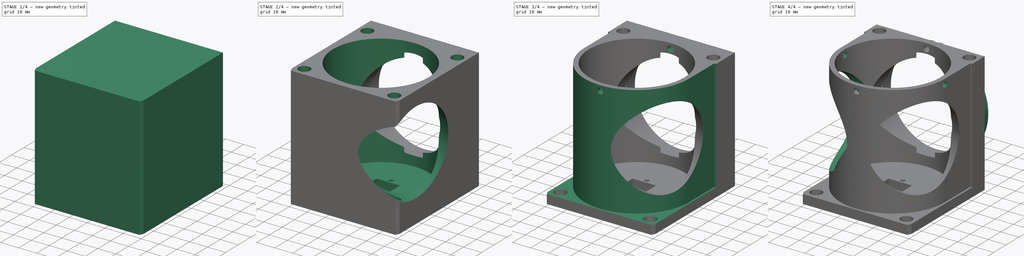
[diagram: build sequence overview — one tinted view per stage of 4, left to right]
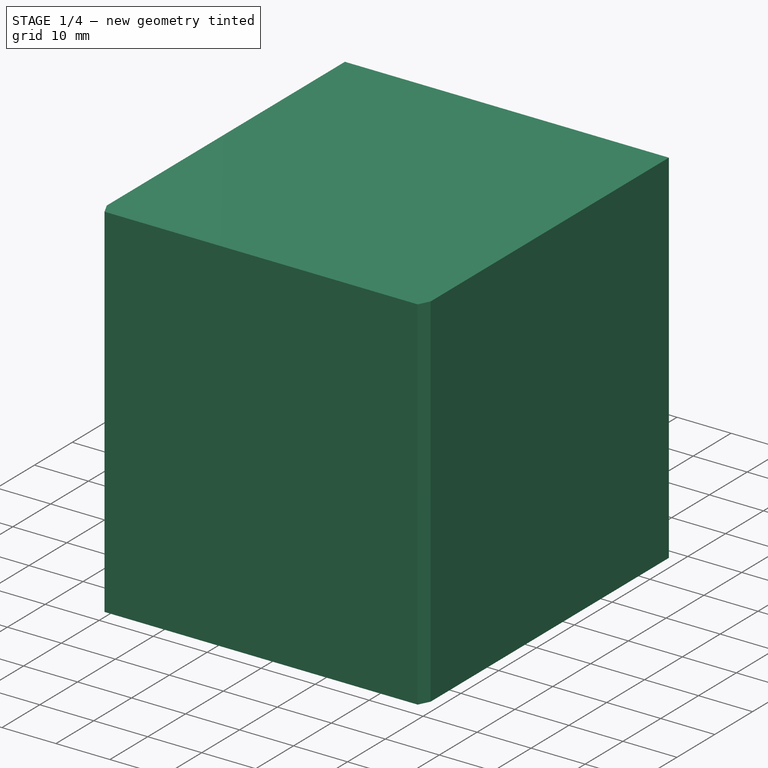
[diagram: stage 1 of 4 — iso view after this stage's code; geometry added in this stage tinted green]
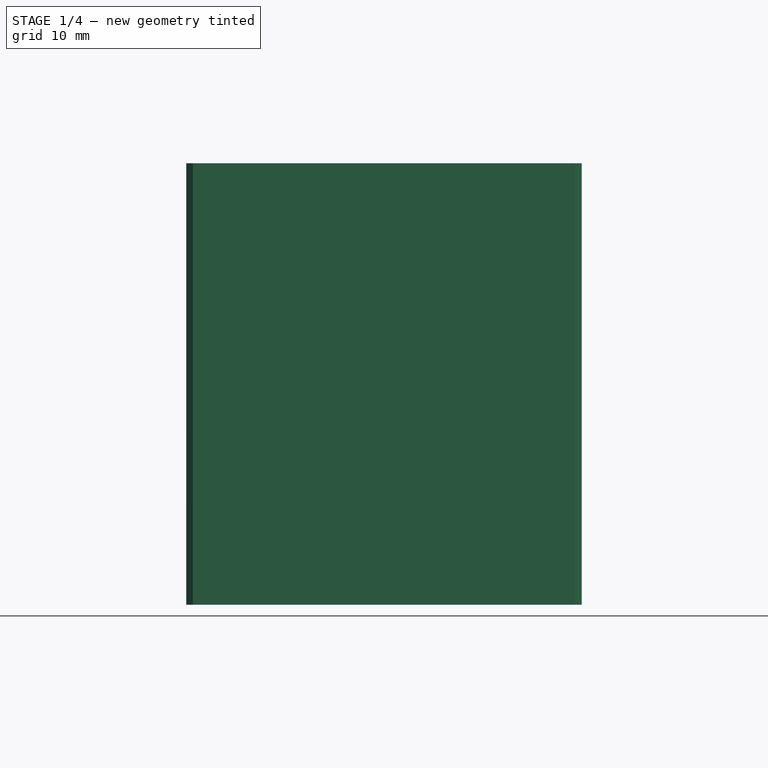
[diagram: stage 1 of 4 — front view after this stage's code; geometry added in this stage tinted green]
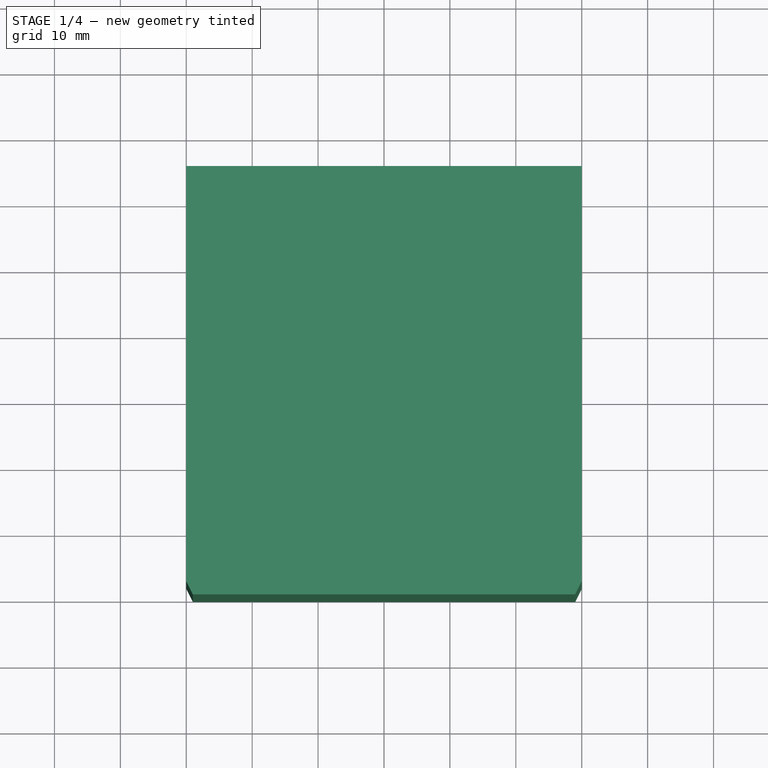
[diagram: stage 1 of 4 — top view after this stage's code; geometry added in this stage tinted green]
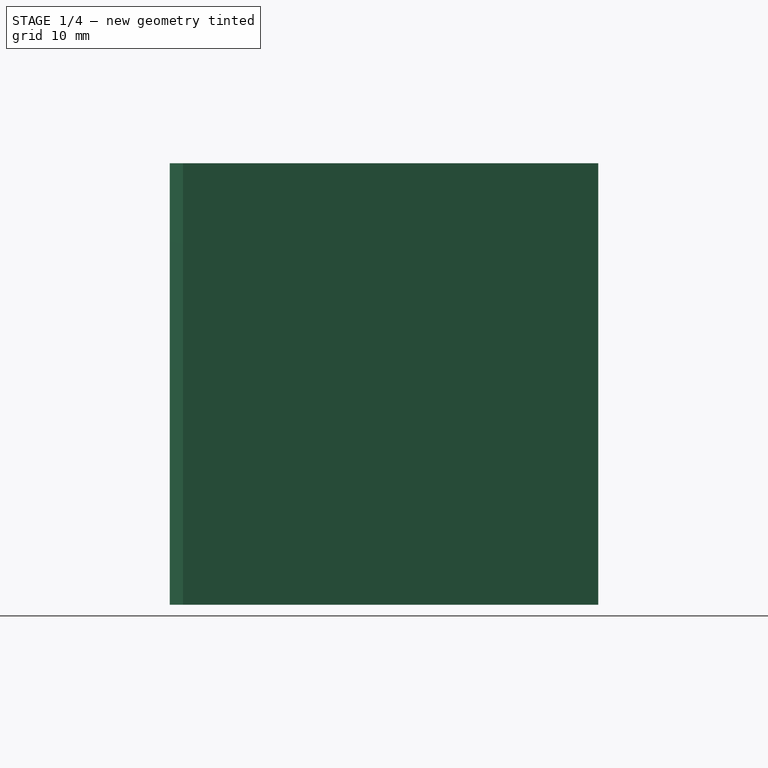
[diagram: stage 1 of 4 — right view after this stage's code; geometry added in this stage tinted green]
FCSTD DOCUMENT  (FreeCAD 0.19R)
Label: BDD_frame
License: All rights reserved
LicenseURL: http://en.wikipedia.org/wiki/All_rights_reserved
objects: Sketcher::SketchObject×11, PartDesign::Pocket×10, PartDesign::Pad×1, PartDesign::Body×1
note: 34 computed .brp shape members not serialized (recipe doc carries the construction recipe); baked Part::Feature solids carry a one-line shape summary decoded from their .brp

FEATURE [Sketcher::SketchObject] Sketch
  FullyConstrained = true
  MapMode = 5
  Support = -> [XY_Plane]
  sketch-geometry (6):
    g0: LineSegment StartX=-30 StartY=35 StartZ=0 EndX=30 EndY=35 EndZ=0
    g1: LineSegment StartX=30 StartY=35 StartZ=0 EndX=30 EndY=-28 EndZ=0
    g2: LineSegment StartX=30 StartY=-28 StartZ=0 EndX=29 EndY=-30 EndZ=0
    g3: LineSegment StartX=29 StartY=-30 StartZ=0 EndX=-29 EndY=-30 EndZ=0
    g4: LineSegment StartX=-29 StartY=-30 StartZ=0 EndX=-30 EndY=-28 EndZ=0
    g5: LineSegment StartX=-30 StartY=-28 StartZ=0 EndX=-30 EndY=35 EndZ=0
  constraints (18):
    c: Horizontal(g0)
    c: DistanceX(g0,g0) = 60
    c: DistanceX(g0,g-1) = 30
    c: DistanceY(g-1,g0) = 35
    c: Coincident(g0,g1)
    c: Vertical(g1)
    c: Coincident(g1,g2)
    c: DistanceY(g2,g1) = 2
    c: DistanceX(g2,g1) = 1
    c: DistanceY(g2,g0) = 65
    c: Coincident(g3,g2)
    c: Horizontal(g3)
    c: Coincident(g4,g3)
    c: Coincident(g5,g4)
    c: Coincident(g5,g0)
    c: Vertical(g5)
    c: DistanceX(g4,g3) = 1
    c: DistanceY(g3,g4) = 2
FEATURE [PartDesign::Pad] Pad
  Direction = (1,1,1)
  Length = 67
  Length2 = 100
  Profile = -> Sketch
  Type = 0
FEATURE [Sketcher::SketchObject] Sketch002
  FullyConstrained = true
  MapMode = 5
  Placement = pos=(0,30,0) rot=(0,0.707107,0.707107;3.14159rad)
  sketch-geometry (1):
    g0: Circle CenterX=0 CenterY=36 CenterZ=0 NormalX=0 NormalY=0 NormalZ=1 AngleXU=0 Radius=25.6
  constraints (3):
    c: PointOnObject(g0,g-2)
    c: Diameter(g0) = 51.2
    c: DistanceY(g-1,g0) = 36
FEATURE [PartDesign::Pocket] Pocket001
  BaseFeature = -> Pad
  Length = 4
  Length2 = 100
  Profile = -> Sketch002
  Type = 4
FEATURE [Sketcher::SketchObject] Sketch003
  FullyConstrained = true
  MapMode = 5
  Placement = pos=(0,35,0) rot=(0,0.707107,0.707107;3.14159rad)
  Support = -> [Pocket001]
  sketch-geometry (1):
    g0: Circle CenterX=0 CenterY=36 CenterZ=0 NormalX=0 NormalY=0 NormalZ=1 AngleXU=0 Radius=23
  constraints (3):
    c: PointOnObject(g0,g-2)
    c: DistanceY(g-1,g0) = 36
    c: Diameter(g0) = 46
FEATURE [PartDesign::Pocket] Pocket002
  BaseFeature = -> Pocket001
  Length = 30
  Length2 = 100
  Profile = -> Sketch003
  Type = 0
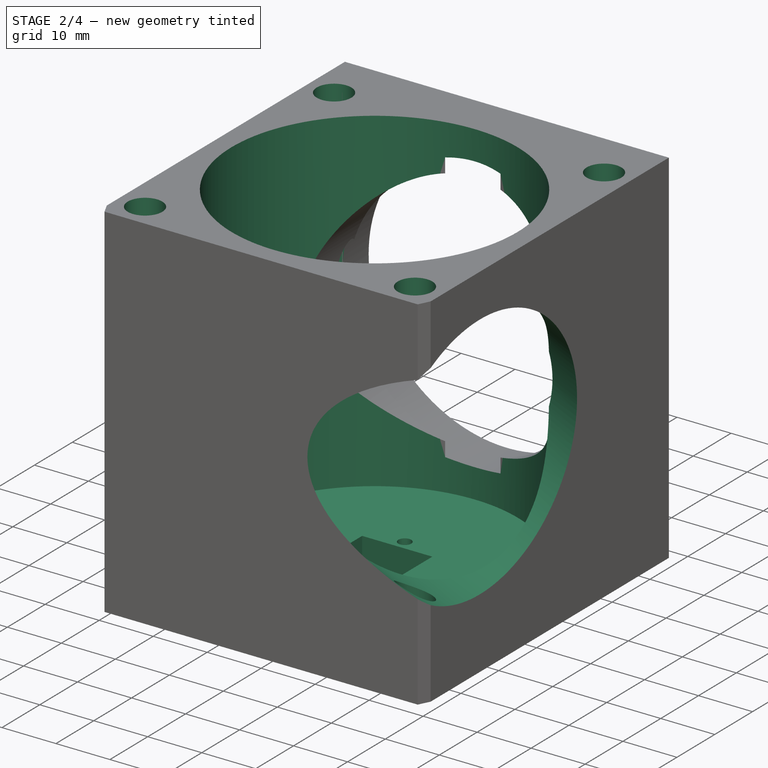
[diagram: stage 2 of 4 — iso view after this stage's code; geometry added in this stage tinted green]
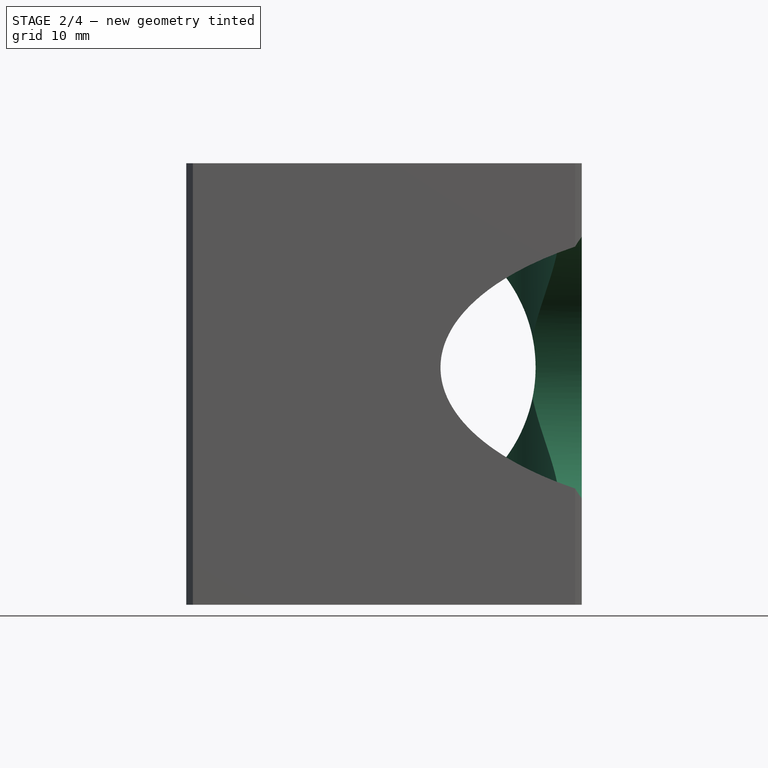
[diagram: stage 2 of 4 — front view after this stage's code; geometry added in this stage tinted green]
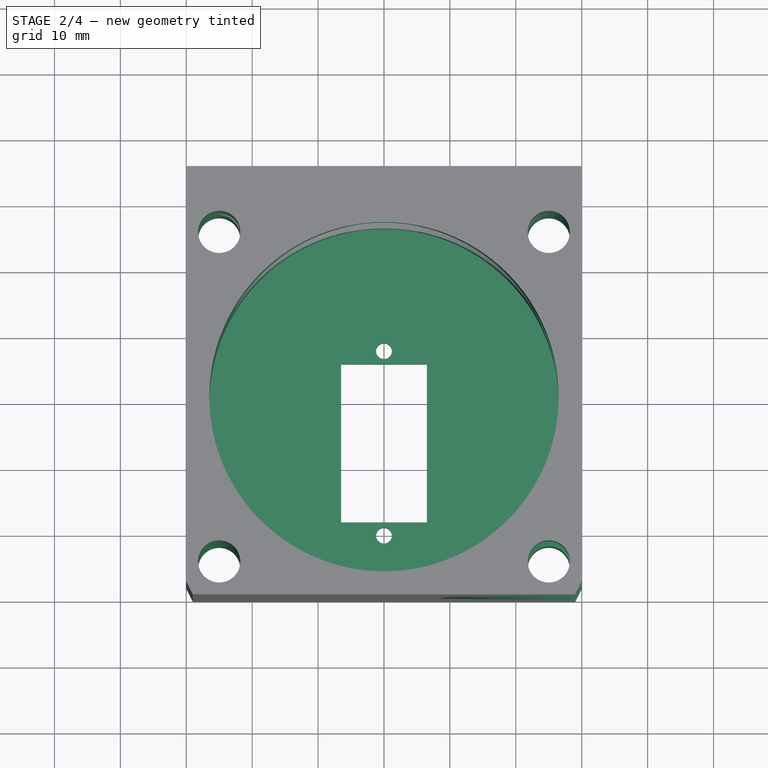
[diagram: stage 2 of 4 — top view after this stage's code; geometry added in this stage tinted green]
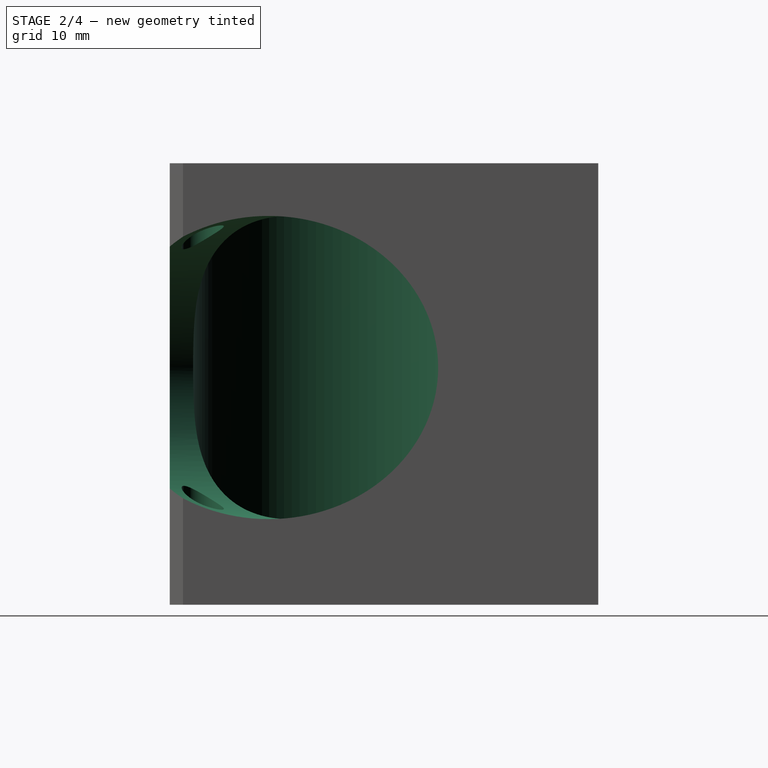
[diagram: stage 2 of 4 — right view after this stage's code; geometry added in this stage tinted green]
FEATURE [Sketcher::SketchObject] Sketch004
  FullyConstrained = true
  MapMode = 5
  Placement = pos=(35.2,-17.6,0) rot=(0.752938,0.465341,0.465341;1.85084rad)
  Support = -> [Pocket002]
  sketch-geometry (1):
    g0: Circle CenterX=0 CenterY=36 CenterZ=0 NormalX=0 NormalY=0 NormalZ=1 AngleXU=0 Radius=23
  constraints (3):
    c: PointOnObject(g0,g-2)
    c: DistanceY(g-1,g0) = 36
    c: Diameter(g0) = 46
FEATURE [PartDesign::Pocket] Pocket003
  BaseFeature = -> Pocket002
  Length = 29
  Length2 = 100
  Profile = -> Sketch004
  Type = 0
FEATURE [Sketcher::SketchObject] Sketch001
  FullyConstrained = true
  MapMode = 5
  Placement = pos=(0,0,67) rot=(0,0,1;0rad)
  Support = -> [Pocket003]
  sketch-geometry (1):
    g0: Circle CenterX=0 CenterY=0 CenterZ=0 NormalX=0 NormalY=0 NormalZ=1 AngleXU=0 Radius=26.5
  constraints (2):
    c: Coincident(g0,g-1)
    c: Diameter(g0) = 53
FEATURE [PartDesign::Pocket] Pocket
  BaseFeature = -> Pocket003
  Length = 62
  Length2 = 100
  Profile = -> Sketch001
  Type = 0
FEATURE [Sketcher::SketchObject] Sketch005
  FullyConstrained = true
  MapMode = 5
  Placement = pos=(0,0,67) rot=(0,0,1;0rad)
  Support = -> [Pocket]
  sketch-geometry (10):
    g0: Circle CenterX=-25 CenterY=25 CenterZ=0 NormalX=0 NormalY=0 NormalZ=1 AngleXU=0 Radius=3.2
    g1: Circle CenterX=25 CenterY=25 CenterZ=0 NormalX=0 NormalY=0 NormalZ=1 AngleXU=0 Radius=3.2
    g2: Circle CenterX=25 CenterY=-25 CenterZ=0 NormalX=0 NormalY=0 NormalZ=1 AngleXU=0 Radius=3.2
    g3: Circle CenterX=-25 CenterY=-25 CenterZ=0 NormalX=0 NormalY=0 NormalZ=1 AngleXU=0 Radius=3.2
    g4: LineSegment StartX=-6.5 StartY=6 StartZ=0 EndX=6.5 EndY=6 EndZ=0
    g5: LineSegment StartX=6.5 StartY=6 StartZ=0 EndX=6.5 EndY=-18 EndZ=0
    g6: LineSegment StartX=6.5 StartY=-18 StartZ=0 EndX=-6.5 EndY=-18 EndZ=0
    g7: LineSegment StartX=-6.5 StartY=-18 StartZ=0 EndX=-6.5 EndY=6 EndZ=0
    g8: Circle CenterX=0 CenterY=-20 CenterZ=0 NormalX=0 NormalY=0 NormalZ=1 AngleXU=0 Radius=1.2
    g9: Circle CenterX=0 CenterY=8 CenterZ=0 NormalX=0 NormalY=0 NormalZ=1 AngleXU=0 Radius=1.2
  constraints (26):
    c: Equal(g0,g3)
    c: Equal(g3,g2)
    c: Equal(g0,g1)
    c: Symmetric(g0,g3,g-1)
    c: Symmetric(g3,g2,g-2)
    c: Symmetric(g0,g1,g-2)
    c: Diameter(g1) = 6.4
    c: DistanceX(g0,g1) = 50
    c: DistanceY(g3,g0) = 50
    c: Coincident(g4,g5)
    c: Coincident(g5,g6)
    c: Coincident(g6,g7)
    c: Coincident(g7,g4)
    c: Horizontal(g6)
    c: Vertical(g5)
    c: Vertical(g7)
    c: DistanceY(g5,g4) = 24
    c: DistanceX(g4,g4) = 13
    c: Symmetric(g4,g4,g-2)
    c: DistanceY(g-1,g4) = 6
    c: PointOnObject(g8,g-2)
    c: PointOnObject(g9,g-2)
    c: Equal(g9,g8)
    c: Diameter(g9) = 2.4
    c: DistanceY(g8,g9) = 28
    c: DistanceY(g4,g9) = 2
FEATURE [PartDesign::Pocket] Pocket004
  BaseFeature = -> Pocket
  Length = 5
  Length2 = 100
  Profile = -> Sketch005
  Type = 1
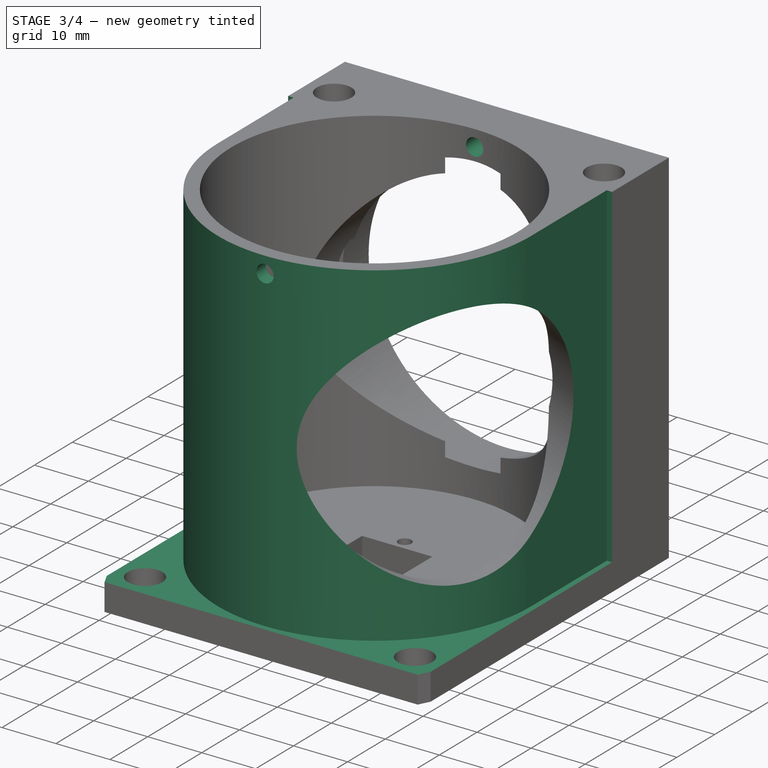
[diagram: stage 3 of 4 — iso view after this stage's code; geometry added in this stage tinted green]
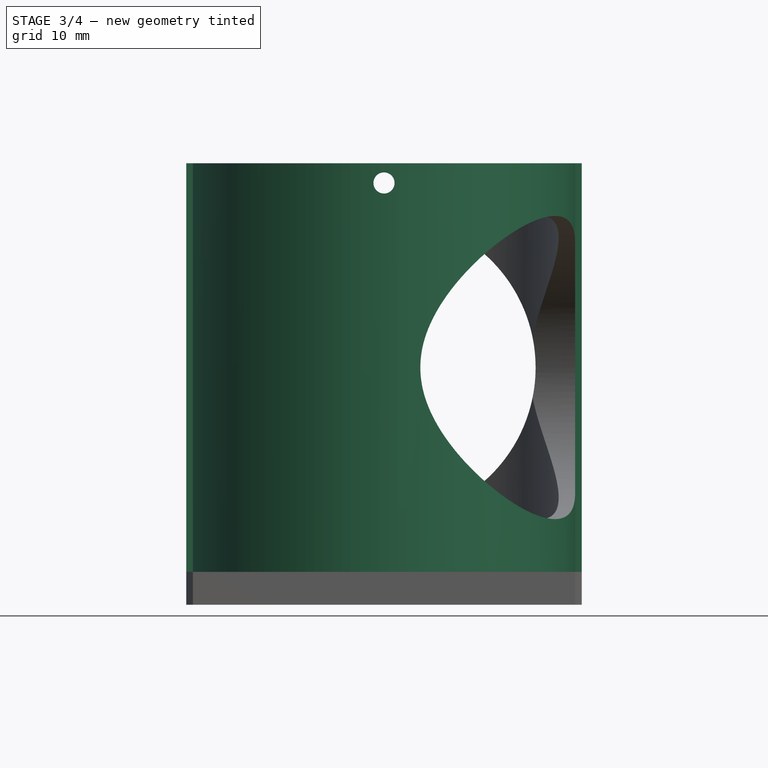
[diagram: stage 3 of 4 — front view after this stage's code; geometry added in this stage tinted green]
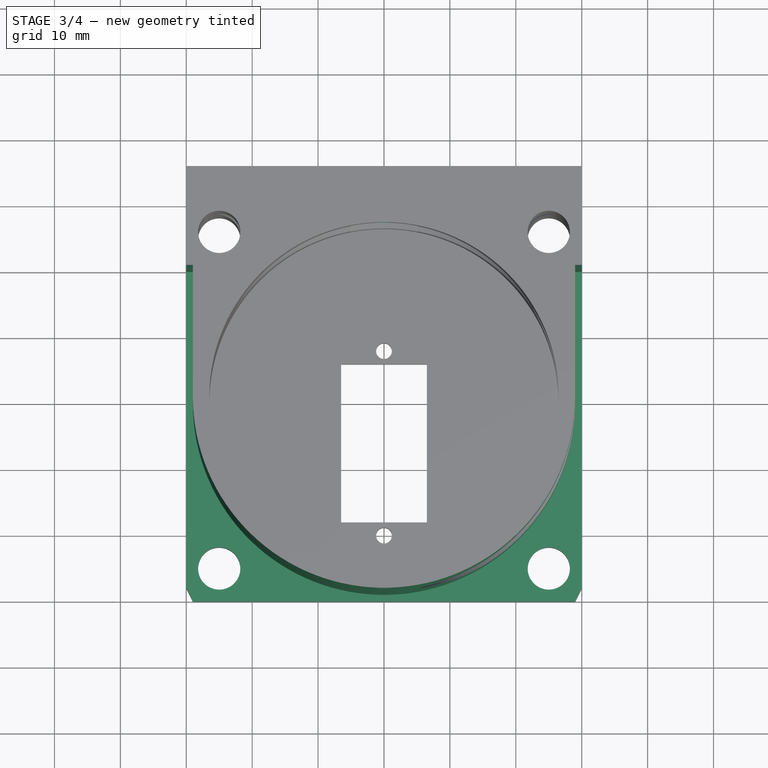
[diagram: stage 3 of 4 — top view after this stage's code; geometry added in this stage tinted green]
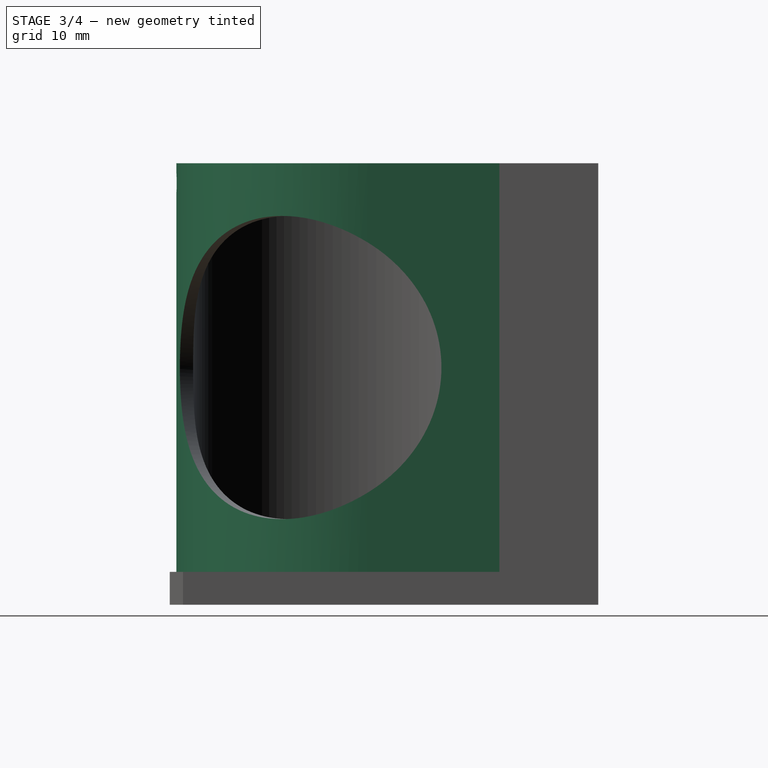
[diagram: stage 3 of 4 — right view after this stage's code; geometry added in this stage tinted green]
FEATURE [Sketcher::SketchObject] Sketch006
  FullyConstrained = true
  MapMode = 5
  Placement = pos=(0,0,67) rot=(0,0,1;0rad)
  Support = -> [Pocket004]
  sketch-geometry (8):
    g0: ArcOfCircle CenterX=0 CenterY=0 CenterZ=0 NormalX=0 NormalY=0 NormalZ=1 AngleXU=0 Radius=29 StartAngle=3.14159 EndAngle=6.28319
    g1: LineSegment StartX=-31 StartY=20 StartZ=0 EndX=-31 EndY=-31 EndZ=0
    g2: LineSegment StartX=-31 StartY=-31 StartZ=0 EndX=31 EndY=-31 EndZ=0
    g3: LineSegment StartX=31 StartY=-31 StartZ=0 EndX=31 EndY=20 EndZ=0
    g4: LineSegment StartX=29 StartY=-7.1e-15 StartZ=0 EndX=29 EndY=20 EndZ=0
    g5: LineSegment StartX=29 StartY=20 StartZ=0 EndX=31 EndY=20 EndZ=0
    g6: LineSegment StartX=-29 StartY=3.6e-15 StartZ=0 EndX=-29 EndY=20 EndZ=0
    g7: LineSegment StartX=-29 StartY=20 StartZ=0 EndX=-31 EndY=20 EndZ=0
  constraints (19):
    c: PointOnObject(g0,g-1)
    c: Coincident(g0,g-1)
    c: Diameter(g0) = 58
    c: Vertical(g1)
    c: Coincident(g1,g2)
    c: Coincident(g2,g3)
    c: Symmetric(g3,g1,g-2)
    c: Symmetric(g2,g1,g-2)
    c: DistanceX(g1,g2) = 62
    c: DistanceY(g1,g1) = 51
    c: Tangent(g0,g4) = -1.5708
    c: Coincident(g4,g5)
    c: Horizontal(g5)
    c: Tangent(g0,g6) = 1.5708
    c: Coincident(g6,g7)
    c: Symmetric(g6,g4,g-2)
    c: Symmetric(g7,g5,g-2)
    c: DistanceY(g0,g6) = 20
    c: Coincident(g7,g1)
FEATURE [PartDesign::Pocket] Pocket005
  BaseFeature = -> Pocket004
  Length = 62
  Length2 = 100
  Profile = -> Sketch006
  Type = 0
FEATURE [Sketcher::SketchObject] Sketch007
  FullyConstrained = true
  MapMode = 5
  Placement = pos=(0,35,0) rot=(0,0.707107,0.707107;3.14159rad)
  Support = -> [Pocket005]
  sketch-geometry (1):
    g0: Circle CenterX=0 CenterY=64 CenterZ=0 NormalX=0 NormalY=0 NormalZ=1 AngleXU=0 Radius=1.6
  constraints (3):
    c: PointOnObject(g0,g-2)
    c: Diameter(g0) = 3.2
    c: DistanceY(g-1,g0) = 64
FEATURE [PartDesign::Pocket] Pocket006
  BaseFeature = -> Pocket005
  Length = 5
  Length2 = 100
  Profile = -> Sketch007
  Type = 1
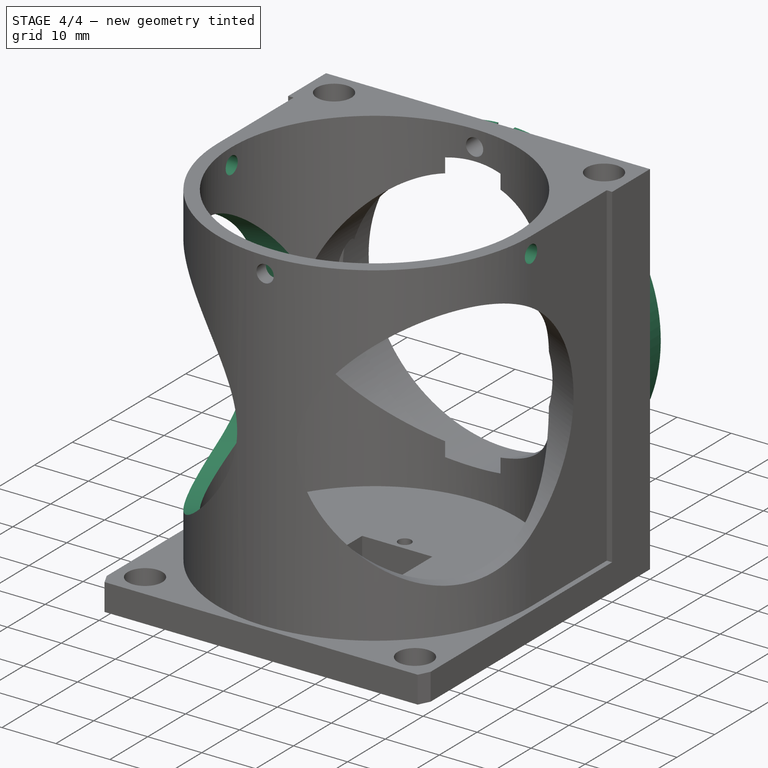
[diagram: stage 4 of 4 — iso view after this stage's code; geometry added in this stage tinted green]
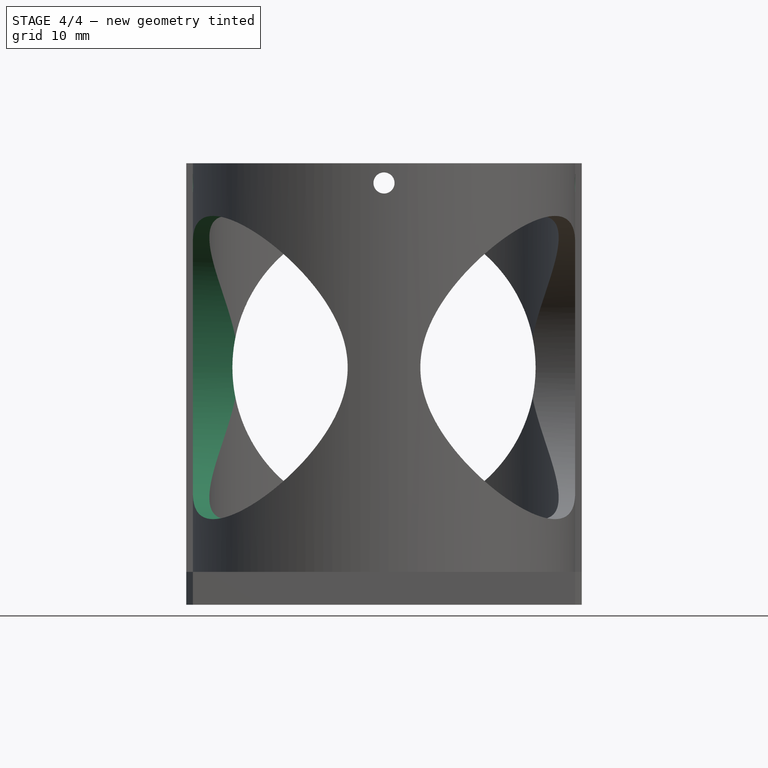
[diagram: stage 4 of 4 — front view after this stage's code; geometry added in this stage tinted green]
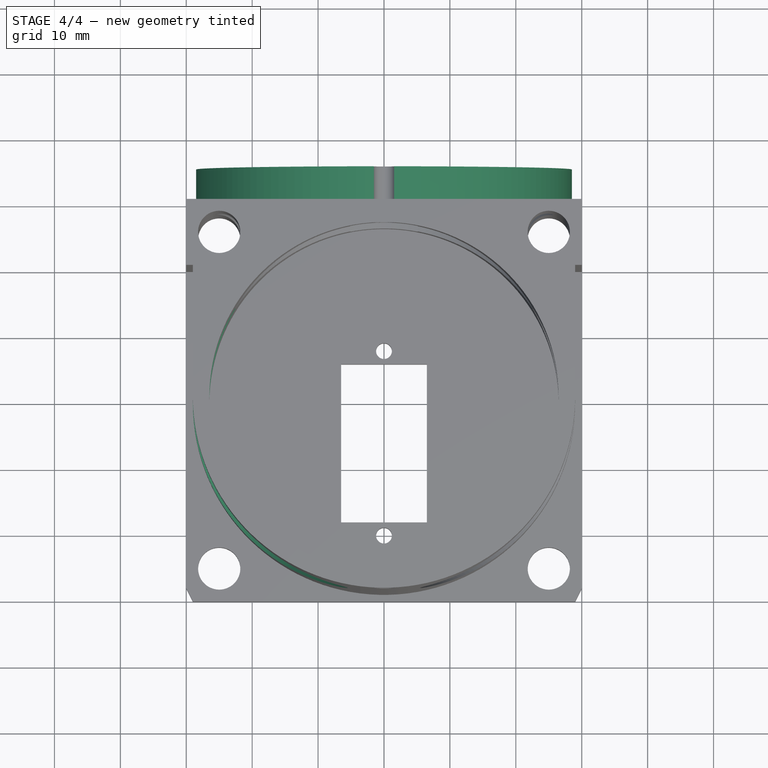
[diagram: stage 4 of 4 — top view after this stage's code; geometry added in this stage tinted green]
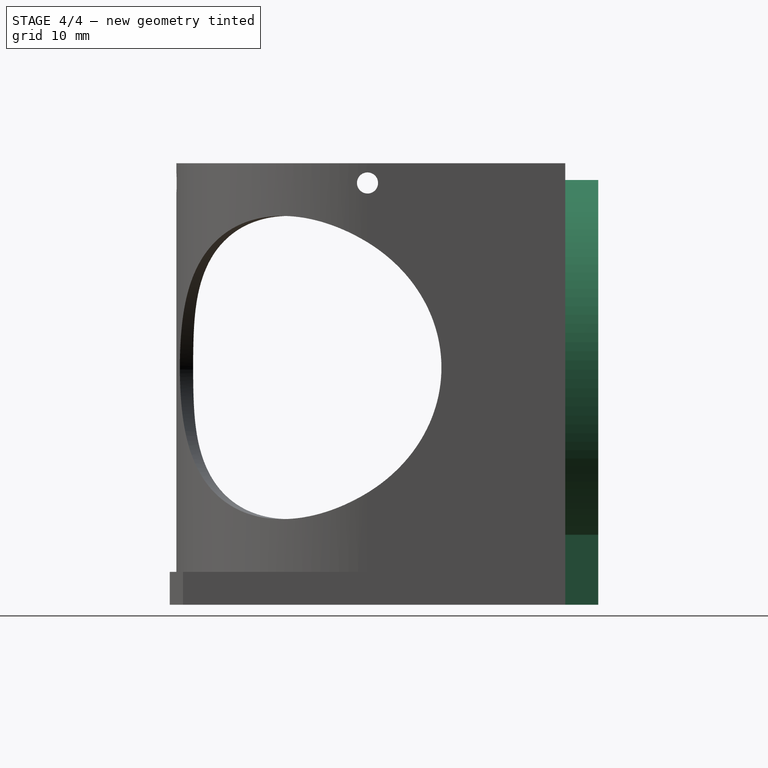
[diagram: stage 4 of 4 — right view after this stage's code; geometry added in this stage tinted green]
FEATURE [Sketcher::SketchObject] Sketch008
  FullyConstrained = true
  MapMode = 5
  Placement = pos=(30,0,0) rot=(0.57735,0.57735,0.57735;2.0944rad)
  Support = -> [Pocket006]
  sketch-geometry (1):
    g0: Circle CenterX=0 CenterY=64 CenterZ=0 NormalX=0 NormalY=0 NormalZ=1 AngleXU=0 Radius=1.6
  constraints (3):
    c: PointOnObject(g0,g-2)
    c: Diameter(g0) = 3.2
    c: DistanceY(g-1,g0) = 64
FEATURE [PartDesign::Pocket] Pocket007
  BaseFeature = -> Pocket006
  Length = 5
  Length2 = 100
  Profile = -> Sketch008
  Type = 1
FEATURE [Sketcher::SketchObject] Sketch009
  FullyConstrained = true
  MapMode = 5
  Placement = pos=(-35.2,-17.6,0) rot=(0.752938,-0.465341,-0.465341;1.85084rad)
  Support = -> [Pocket003]
  sketch-geometry (1):
    g0: Circle CenterX=0 CenterY=36 CenterZ=0 NormalX=0 NormalY=0 NormalZ=1 AngleXU=0 Radius=23
  constraints (3):
    c: PointOnObject(g0,g-2)
    c: Diameter(g0) = 46
    c: DistanceY(g-1,g0) = 36
FEATURE [PartDesign::Pocket] Pocket008
  BaseFeature = -> Pocket007
  Length = 29
  Length2 = 100
  Profile = -> Sketch009
  Type = 0
FEATURE [Sketcher::SketchObject] Sketch010
  FullyConstrained = true
  MapMode = 5
  Placement = pos=(0,35,0) rot=(0,0.707107,0.707107;3.14159rad)
  Support = -> [Pocket008]
  sketch-geometry (8):
    g0: ArcOfCircle CenterX=1.8e-15 CenterY=36 CenterZ=0 NormalX=0 NormalY=0 NormalZ=1 AngleXU=0 Radius=28.5 StartAngle=5.18604 EndAngle=10.5219
    g1: LineSegment StartX=13 StartY=10.6376 StartZ=0 EndX=13 EndY=0 EndZ=0
    g2: LineSegment StartX=-13 StartY=10.6376 StartZ=0 EndX=-13 EndY=0 EndZ=0
    g3: LineSegment StartX=13 StartY=0 StartZ=0 EndX=35 EndY=0 EndZ=0
    g4: LineSegment StartX=35 StartY=0 StartZ=0 EndX=35 EndY=70 EndZ=0
    g5: LineSegment StartX=35 StartY=70 StartZ=0 EndX=-35 EndY=70 EndZ=0
    g6: LineSegment StartX=-35 StartY=70 StartZ=0 EndX=-35 EndY=0 EndZ=0
    g7: LineSegment StartX=-35 StartY=0 StartZ=0 EndX=-13 EndY=0 EndZ=0
  constraints (23):
    c: DistanceY(g-1,g0) = 36
    c: Symmetric(g0,g0,g-2)
    c: Coincident(g1,g0)
    c: PointOnObject(g1,g-1)
    c: Vertical(g1)
    c: Coincident(g2,g0)
    c: Vertical(g2)
    c: DistanceX(g2,g1) = 26
    c: Diameter(g0) = 57
    c: Coincident(g1,g3)
    c: Horizontal(g3)
    c: Coincident(g3,g4)
    c: Vertical(g4)
    c: Coincident(g4,g5)
    c: Coincident(g5,g6)
    c: PointOnObject(g6,g-1)
    c: Vertical(g6)
    c: Coincident(g6,g7)
    c: Coincident(g7,g2)
    c: Horizontal(g7)
    c: Symmetric(g5,g4,g-2)
    c: DistanceY(g3,g4) = 70
    c: DistanceX(g6,g3) = 70
FEATURE [PartDesign::Pocket] Pocket009
  BaseFeature = -> Pocket008
  Length = 5
  Length2 = 100
  Profile = -> Sketch010
  Type = 0
FEATURE [PartDesign::Body] Body  label="BDD_frame"
  Group = -> [Sketch,Pad,Sketch001,Sketch002,Pocket001,Sketch003,Pocket002,Sketch004,Pocket003,Pocket,Sketch005,Pocket004,Sketch006,Pocket005,Sketch007,Pocket006,Sketch008,Pocket007,Sketch009,Pocket008,Sketch010,Pocket009]
  Origin = -> Origin
  Tip = -> Pocket009
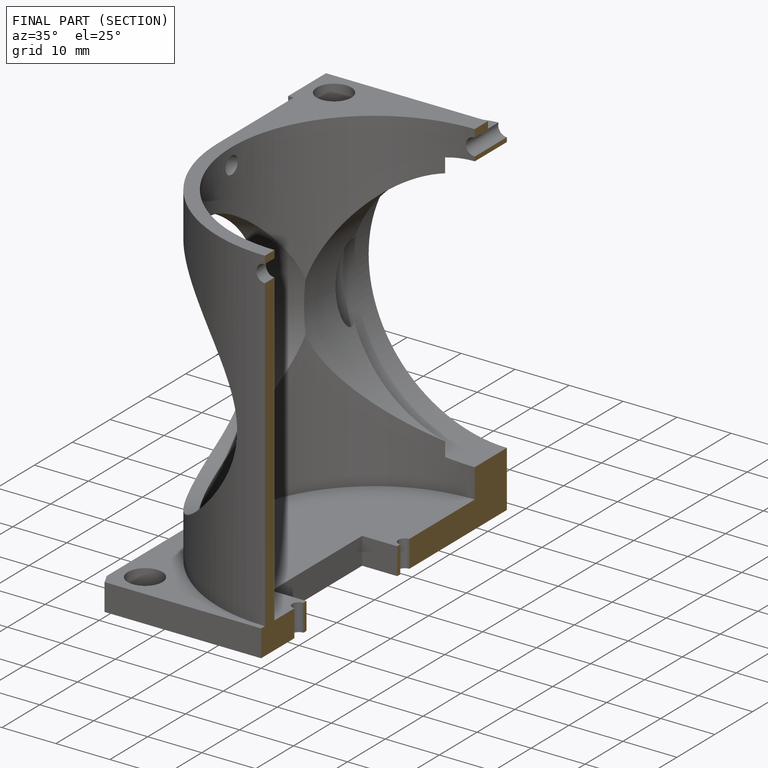
[diagram: finished part — half-section view (interior)]
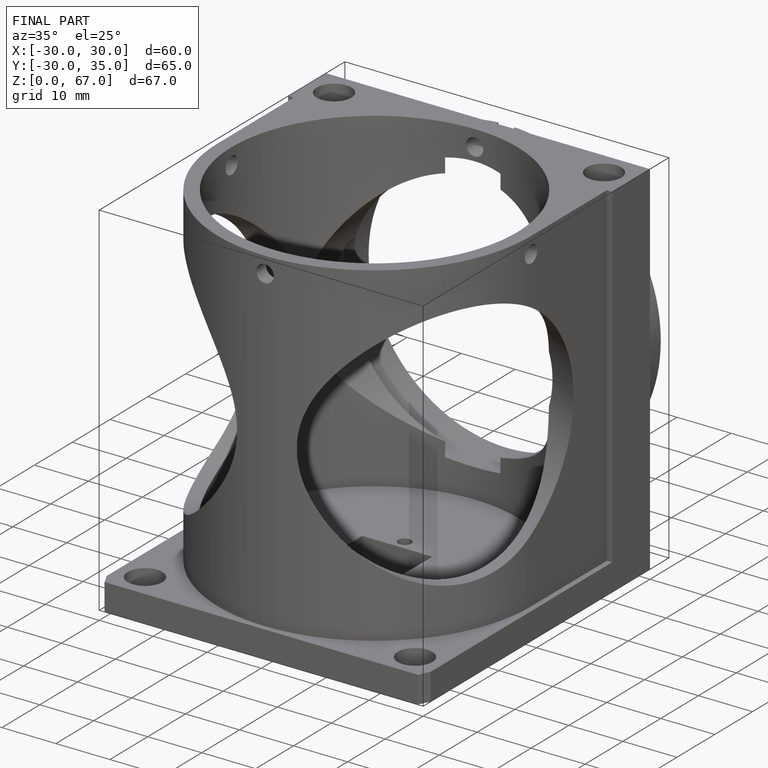
[diagram: finished part — iso view with bounding-box wireframe]
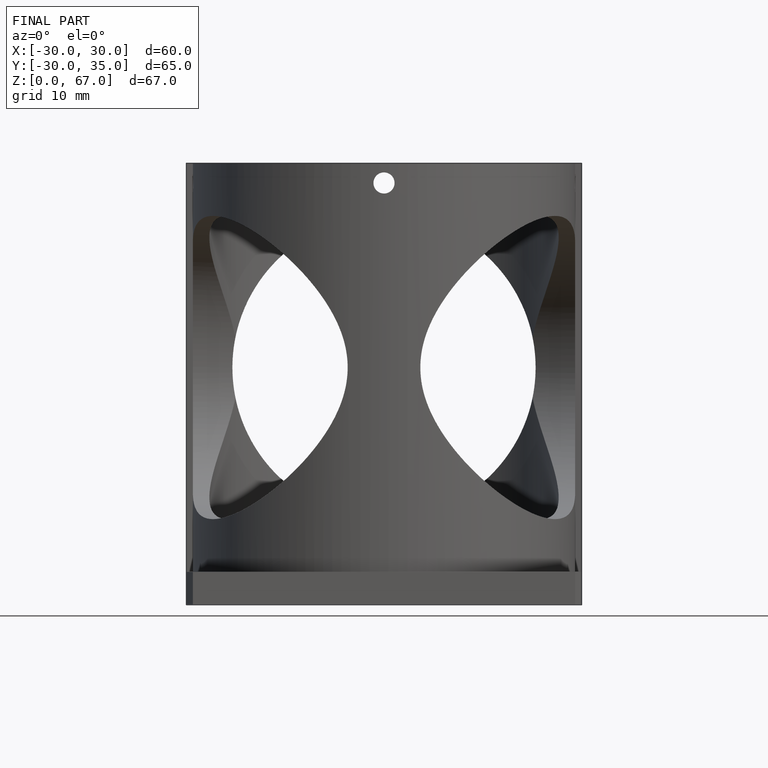
[diagram: finished part — front view with bounding-box wireframe]
